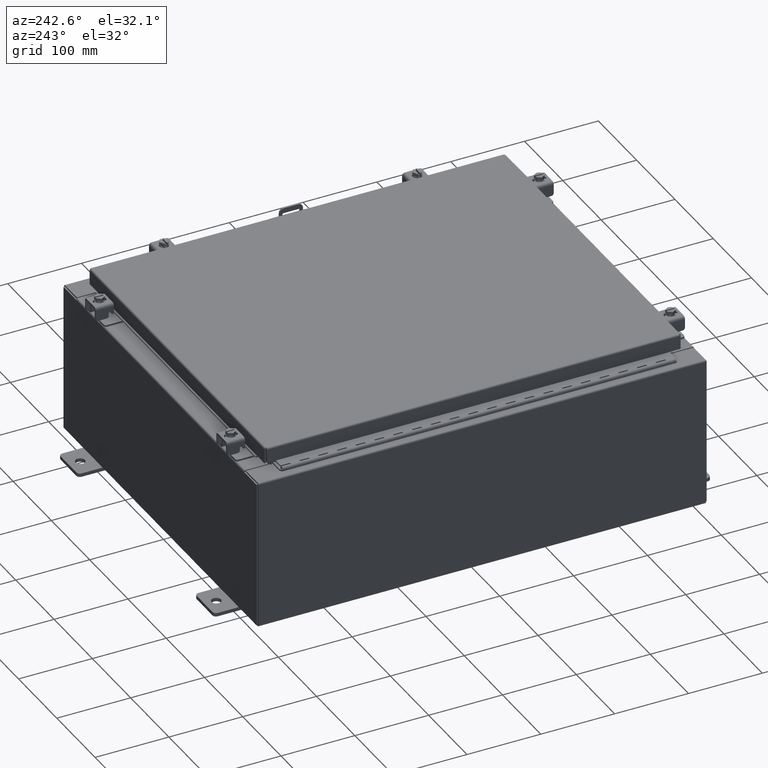
[diagram: clean part render]
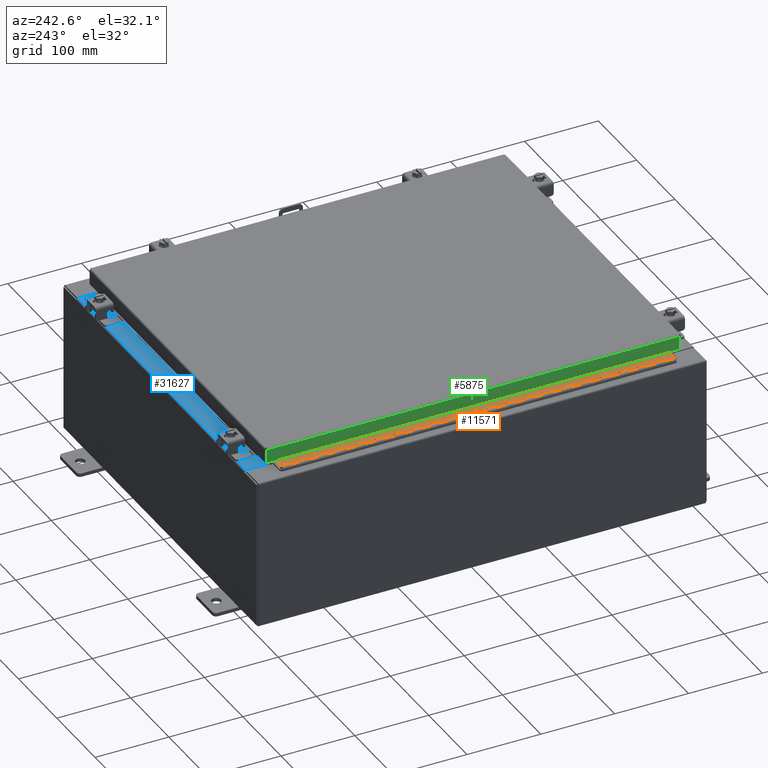
[diagram: same view with three faces highlighted in distinct colors, each labeled with its STEP entity id]
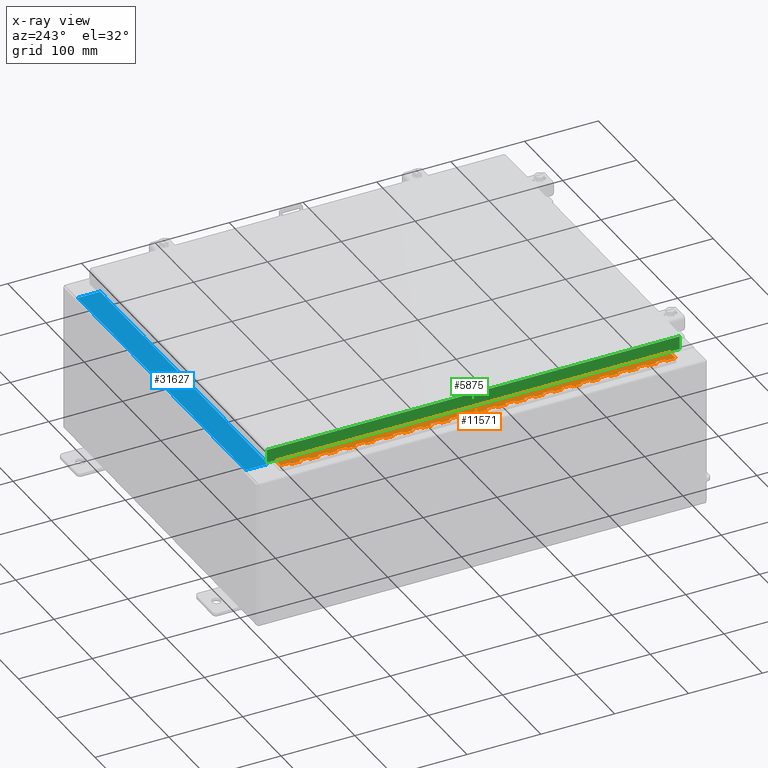
[diagram: x-ray of the same camera — body ghosted, the three highlighted faces saturated]
A machine part, auxiliary view with three faces highlighted in distinct colors.
The next image is the same camera in x-ray (body ghosted, the three faces saturated) — at least one of them is partly hidden behind the body in this view.
Their STEP definitions:

[orange] entity #11571 — the highlighted planar face has unit normal (-0, -0, 1).
#72 = EDGE_CURVE ( 'NONE', #31941, #16495, #19996, .T. ) ;
#95 = VERTEX_POINT ( 'NONE', #32042 ) ;
#104 = CARTESIAN_POINT ( 'NONE',  ( -0.6869999999999978300, 0.6754999999999996600, -21.00000000000000000 ) ) ;
#152 = DIRECTION ( 'NONE',  ( 0.0000000000000000000, -0.0000000000000000000, -1.000000000000000000 ) ) ;
#158 = VERTEX_POINT ( 'NONE', #24672 ) ;
#192 = VECTOR ( 'NONE', #152, 39.37007874015748100 ) ;
#249 = LINE ( 'NONE', #13027, #10410 ) ;
#327 = CARTESIAN_POINT ( 'NONE',  ( -0.6869999999999978300, 0.6754999999999996600, -21.00000000000000000 ) ) ;
#373 = ORIENTED_EDGE ( 'NONE', *, *, #5772, .F. ) ;
#419 = VECTOR ( 'NONE', #10632, 39.37007874015748100 ) ;
#421 = LINE ( 'NONE', #12951, #26584 ) ;
#492 = VERTEX_POINT ( 'NONE', #1277 ) ;
#511 = CARTESIAN_POINT ( 'NONE',  ( -0.6869999999999973900, 0.8004999999999995500, -6.499999999999999100 ) ) ;
#547 = VECTOR ( 'NONE', #10342, 39.37007874015748100 ) ;
#579 = ORIENTED_EDGE ( 'NONE', *, *, #18623, .T. ) ;
#615 = EDGE_CURVE ( 'NONE', #27066, #18751, #25871, .T. ) ;
#629 = ORIENTED_EDGE ( 'NONE', *, *, #25725, .F. ) ;
#727 = DIRECTION ( 'NONE',  ( 3.389037039080723100E-015, 1.000000000000000000, -0.0000000000000000000 ) ) ;
#773 = VECTOR ( 'NONE', #28129, 39.37007874015748100 ) ;
#817 = ORIENTED_EDGE ( 'NONE', *, *, #27896, .F. ) ;
#938 = LINE ( 'NONE', #18654, #29425 ) ;
#944 = CARTESIAN_POINT ( 'NONE',  ( -0.6869999999999982800, 0.5504999999999997700, -7.000000000000000000 ) ) ;
#956 = CARTESIAN_POINT ( 'NONE',  ( -0.6869999999999982800, 0.5504999999999997700, -12.49999999999999800 ) ) ;
#1136 = LINE ( 'NONE', #4618, #29504 ) ;
#1240 = CARTESIAN_POINT ( 'NONE',  ( -0.6869999999999998300, 0.07549999999999991400, -21.00000000000000000 ) ) ;
#1276 = VECTOR ( 'NONE', #9598, 39.37007874015748100 ) ;
#1277 = CARTESIAN_POINT ( 'NONE',  ( -0.6869999999999982800, 0.5504999999999997700, -10.00000000000000000 ) ) ;
#1366 = DIRECTION ( 'NONE',  ( 0.0000000000000000000, -0.0000000000000000000, -1.000000000000000000 ) ) ;
#1374 = DIRECTION ( 'NONE',  ( -3.389037039080723100E-015, -1.000000000000000000, 0.0000000000000000000 ) ) ;
#1401 = EDGE_CURVE ( 'NONE', #95, #5505, #13437, .T. ) ;
#1411 = CARTESIAN_POINT ( 'NONE',  ( -0.6869999999999982800, 0.5504999999999997700, -19.50000000000000000 ) ) ;
#1423 = FACE_OUTER_BOUND ( 'NONE', #13413, .T. ) ;
#1444 = EDGE_CURVE ( 'NONE', #4088, #31842, #24304, .T. ) ;
#1625 = CARTESIAN_POINT ( 'NONE',  ( -0.6869999999999978300, 0.6754999999999996600, -4.000000000000000000 ) ) ;
#1630 = CARTESIAN_POINT ( 'NONE',  ( -0.6869999999999982800, 0.5504999999999997700, -1.000000000000000000 ) ) ;
#1737 = EDGE_CURVE ( 'NONE', #15295, #22101, #8138, .T. ) ;
#1761 = EDGE_CURVE ( 'NONE', #21065, #9714, #6134, .T. ) ;
#1767 = EDGE_CURVE ( 'NONE', #95, #21434, #7452, .T. ) ;
#1772 = DIRECTION ( 'NONE',  ( 3.389037039080723100E-015, 1.000000000000000000, -0.0000000000000000000 ) ) ;
#1784 = EDGE_CURVE ( 'NONE', #12634, #20518, #31451, .T. ) ;
#1806 = CARTESIAN_POINT ( 'NONE',  ( -0.6869999999999978300, 0.6754999999999996600, -5.000000000000000000 ) ) ;
#1838 = EDGE_CURVE ( 'NONE', #17435, #2869, #16113, .T. ) ;
#1878 = CARTESIAN_POINT ( 'NONE',  ( -0.6869999999999973900, 0.8004999999999995500, -20.00000000000000000 ) ) ;
#1889 = DIRECTION ( 'NONE',  ( 0.0000000000000000000, 0.0000000000000000000, 1.000000000000000000 ) ) ;
#1908 = DIRECTION ( 'NONE',  ( -3.389037039080723100E-015, -1.000000000000000000, 0.0000000000000000000 ) ) ;
#1953 = ORIENTED_EDGE ( 'NONE', *, *, #19820, .F. ) ;
#2002 = ORIENTED_EDGE ( 'NONE', *, *, #26963, .T. ) ;
#2180 = CARTESIAN_POINT ( 'NONE',  ( -0.6869999999999978300, 0.6754999999999996600, -4.500000000000000000 ) ) ;
#2186 = LINE ( 'NONE', #23374, #32911 ) ;
#2248 = EDGE_CURVE ( 'NONE', #5620, #9812, #15557, .T. ) ;
#2257 = ORIENTED_EDGE ( 'NONE', *, *, #8044, .F. ) ;
#2272 = ORIENTED_EDGE ( 'NONE', *, *, #15311, .F. ) ;
#2303 = LINE ( 'NONE', #28101, #773 ) ;
#2348 = ORIENTED_EDGE ( 'NONE', *, *, #1761, .F. ) ;
#2375 = CARTESIAN_POINT ( 'NONE',  ( -0.6869999999999973900, 0.8004999999999995500, -19.50000000000000000 ) ) ;
#2517 = CARTESIAN_POINT ( 'NONE',  ( -0.6869999999999978300, 0.6754999999999996600, -16.50000000000000000 ) ) ;
#2530 = CARTESIAN_POINT ( 'NONE',  ( -0.6869999999999998300, 0.07549999999999991400, -21.00000000000000000 ) ) ;
#2532 = VERTEX_POINT ( 'NONE', #19834 ) ;
#2725 = EDGE_CURVE ( 'NONE', #5505, #10957, #26624, .T. ) ;
#2748 = EDGE_CURVE ( 'NONE', #11145, #15222, #10346, .T. ) ;
#2827 = VERTEX_POINT ( 'NONE', #23710 ) ;
#2854 = EDGE_CURVE ( 'NONE', #21801, #21434, #28628, .T. ) ;
#2869 = VERTEX_POINT ( 'NONE', #21868 ) ;
#2871 = VERTEX_POINT ( 'NONE', #24223 ) ;
#2938 = VERTEX_POINT ( 'NONE', #32371 ) ;
#2986 = LINE ( 'NONE', #17877, #13874 ) ;
#3001 = VECTOR ( 'NONE', #7711, 39.37007874015748100 ) ;
#3013 = EDGE_CURVE ( 'NONE', #23350, #18735, #22221, .T. ) ;
#3070 = LINE ( 'NONE', #17144, #14933 ) ;
#3126 = VERTEX_POINT ( 'NONE', #13439 ) ;
#3219 = ORIENTED_EDGE ( 'NONE', *, *, #4974, .F. ) ;
#3452 = DIRECTION ( 'NONE',  ( 0.0000000000000000000, 0.0000000000000000000, 1.000000000000000000 ) ) ;
#3458 = EDGE_CURVE ( 'NONE', #13190, #22101, #15332, .T. ) ;
#3467 = VECTOR ( 'NONE', #6435, 39.37007874015748100 ) ;
#3644 = DIRECTION ( 'NONE',  ( 0.0000000000000000000, 0.0000000000000000000, 1.000000000000000000 ) ) ;
#3649 = ORIENTED_EDGE ( 'NONE', *, *, #6611, .F. ) ;
#3788 = EDGE_CURVE ( 'NONE', #11145, #31712, #19219, .T. ) ;
#3838 = VERTEX_POINT ( 'NONE', #11628 ) ;
#3854 = EDGE_CURVE ( 'NONE', #16452, #28626, #11042, .T. ) ;
#3875 = LINE ( 'NONE', #6236, #30788 ) ;
#3888 = CARTESIAN_POINT ( 'NONE',  ( -0.6869999999999978300, 0.6754999999999996600, -9.500000000000000000 ) ) ;
#3958 = VECTOR ( 'NONE', #26482, 39.37007874015748100 ) ;
#4002 = EDGE_CURVE ( 'NONE', #7594, #21764, #7315, .T. ) ;
#4009 = VERTEX_POINT ( 'NONE', #10034 ) ;
#4063 = EDGE_CURVE ( 'NONE', #4009, #11739, #7864, .T. ) ;
#4074 = DIRECTION ( 'NONE',  ( 0.0000000000000000000, -0.0000000000000000000, -1.000000000000000000 ) ) ;
#4088 = VERTEX_POINT ( 'NONE', #4867 ) ;
#4093 = DIRECTION ( 'NONE',  ( 0.0000000000000000000, 0.0000000000000000000, 1.000000000000000000 ) ) ;
#4144 = EDGE_CURVE ( 'NONE', #3126, #23350, #16301, .T. ) ;
#4153 = ORIENTED_EDGE ( 'NONE', *, *, #3458, .T. ) ;
#4202 = CARTESIAN_POINT ( 'NONE',  ( -0.6869999999999973900, 0.8004999999999995500, -17.99999999999999600 ) ) ;
#4279 = ORIENTED_EDGE ( 'NONE', *, *, #1401, .F. ) ;
#4306 = EDGE_CURVE ( 'NONE', #10010, #14289, #13847, .T. ) ;
#4314 = ORIENTED_EDGE ( 'NONE', *, *, #20349, .F. ) ;
#4329 = CARTESIAN_POINT ( 'NONE',  ( -0.6870000000000022800, -0.6245000000000003900, -21.00000000000000000 ) ) ;
#4335 = CARTESIAN_POINT ( 'NONE',  ( -0.6869999999999978300, 0.6754999999999996600, -19.50000000000000000 ) ) ;
#4399 = VERTEX_POINT ( 'NONE', #31538 ) ;
#4406 = CARTESIAN_POINT ( 'NONE',  ( -0.6869999999999978300, 0.6754999999999996600, -21.00000000000000000 ) ) ;
#4412 = PLANE ( 'NONE',  #15098 ) ;
#4465 = DIRECTION ( 'NONE',  ( 0.0000000000000000000, 0.0000000000000000000, 1.000000000000000000 ) ) ;
#4495 = CARTESIAN_POINT ( 'NONE',  ( -0.6869999999999973900, 0.8004999999999995500, -1.000000000000000000 ) ) ;
#4544 = ORIENTED_EDGE ( 'NONE', *, *, #1737, .F. ) ;
#4612 = DIRECTION ( 'NONE',  ( 3.389037039080723100E-015, 1.000000000000000000, -0.0000000000000000000 ) ) ;
#4618 = CARTESIAN_POINT ( 'NONE',  ( -0.6869999999999978300, 0.6754999999999996600, -21.00000000000000000 ) ) ;
#4619 = LINE ( 'NONE', #28529, #25970 ) ;
#4628 = LINE ( 'NONE', #511, #21189 ) ;
#4704 = CARTESIAN_POINT ( 'NONE',  ( -0.6869999999999982800, 0.5504999999999997700, -8.500000000000000000 ) ) ;
#4815 = CARTESIAN_POINT ( 'NONE',  ( -0.6869999999999978300, 0.6754999999999996600, -7.499999999999999100 ) ) ;
#4867 = CARTESIAN_POINT ( 'NONE',  ( -0.6869999999999982800, 0.5504999999999997700, -18.50000000000000000 ) ) ;
#4905 = CARTESIAN_POINT ( 'NONE',  ( -0.6869999999999982800, 0.5504999999999997700, -4.500000000000000000 ) ) ;
#4974 = EDGE_CURVE ( 'NONE', #6465, #17435, #22773, .T. ) ;
#5078 = ORIENTED_EDGE ( 'NONE', *, *, #3013, .F. ) ;
#5181 = CARTESIAN_POINT ( 'NONE',  ( -0.6869999999999978300, 0.6754999999999996600, -11.99999999999999800 ) ) ;
#5271 = CARTESIAN_POINT ( 'NONE',  ( -0.6869999999999982800, 0.5504999999999997700, -17.00000000000000000 ) ) ;
#5305 = CARTESIAN_POINT ( 'NONE',  ( -0.6869999999999982800, 0.5504999999999997700, -2.500000000000000000 ) ) ;
#5321 = VECTOR ( 'NONE', #15488, 39.37007874015748100 ) ;
#5332 = VECTOR ( 'NONE', #19771, 39.37007874015748100 ) ;
#5350 = CARTESIAN_POINT ( 'NONE',  ( -0.6869999999999982800, 0.5504999999999997700, -6.499999999999999100 ) ) ;
#5355 = ORIENTED_EDGE ( 'NONE', *, *, #8158, .T. ) ;
#5503 = CARTESIAN_POINT ( 'NONE',  ( -0.6869999999999978300, 0.6754999999999996600, -10.50000000000000000 ) ) ;
#5505 = VERTEX_POINT ( 'NONE', #18311 ) ;
#5528 = EDGE_CURVE ( 'NONE', #15356, #4088, #4619, .T. ) ;
#5583 = CARTESIAN_POINT ( 'NONE',  ( -0.6869999999999982800, 0.5504999999999997700, -19.00000000000000000 ) ) ;
#5620 = VERTEX_POINT ( 'NONE', #24882 ) ;
#5640 = ORIENTED_EDGE ( 'NONE', *, *, #24966, .F. ) ;
#5766 = VECTOR ( 'NONE', #1889, 39.37007874015748100 ) ;
#5772 = EDGE_CURVE ( 'NONE', #16511, #9848, #29916, .T. ) ;
#5790 = ORIENTED_EDGE ( 'NONE', *, *, #23602, .F. ) ;
#5820 = VERTEX_POINT ( 'NONE', #23921 ) ;
#6008 = CARTESIAN_POINT ( 'NONE',  ( -0.6869999999999982800, 0.5504999999999997700, -16.00000000000000000 ) ) ;
#6031 = ORIENTED_EDGE ( 'NONE', *, *, #15685, .F. ) ;
#6084 = DIRECTION ( 'NONE',  ( -3.389037039080723100E-015, -1.000000000000000000, 0.0000000000000000000 ) ) ;
#6101 = VECTOR ( 'NONE', #22974, 39.37007874015748100 ) ;
#6134 = LINE ( 'NONE', #7894, #14259 ) ;
#6156 = DIRECTION ( 'NONE',  ( -3.389037039080723100E-015, -1.000000000000000000, 0.0000000000000000000 ) ) ;
#6186 = EDGE_CURVE ( 'NONE', #4399, #31712, #17664, .T. ) ;
#6198 = EDGE_CURVE ( 'NONE', #28626, #9812, #19679, .T. ) ;
#6236 = CARTESIAN_POINT ( 'NONE',  ( -0.6869999999999973900, 0.8004999999999995500, -19.00000000000000000 ) ) ;
#6242 = VECTOR ( 'NONE', #4093, 39.37007874015748100 ) ;
#6286 = VERTEX_POINT ( 'NONE', #4905 ) ;
#6318 = CARTESIAN_POINT ( 'NONE',  ( -0.6869999999999982800, 0.5504999999999997700, -12.99999999999999800 ) ) ;
#6386 = DIRECTION ( 'NONE',  ( 3.369016658928398200E-015, 1.000000000000000000, 0.0000000000000000000 ) ) ;
#6416 = CARTESIAN_POINT ( 'NONE',  ( -0.6869999999999982800, 0.5504999999999997700, -6.000000000000000900 ) ) ;
#6429 = DIRECTION ( 'NONE',  ( 1.000000000000000000, -3.369016658928398200E-015, 0.0000000000000000000 ) ) ;
#6435 = DIRECTION ( 'NONE',  ( 0.0000000000000000000, -0.0000000000000000000, -1.000000000000000000 ) ) ;
#6460 = ORIENTED_EDGE ( 'NONE', *, *, #14469, .F. ) ;
#6465 = VERTEX_POINT ( 'NONE', #30205 ) ;
#6505 = CARTESIAN_POINT ( 'NONE',  ( -0.6869999999999982800, 0.5504999999999997700, -7.499999999999999100 ) ) ;
#6562 = DIRECTION ( 'NONE',  ( -3.389037039080723100E-015, -1.000000000000000000, 0.0000000000000000000 ) ) ;
#6575 = EDGE_CURVE ( 'NONE', #10075, #4399, #7913, .T. ) ;
#6608 = DIRECTION ( 'NONE',  ( 3.369016658928398200E-015, 1.000000000000000000, 0.0000000000000000000 ) ) ;
#6611 = EDGE_CURVE ( 'NONE', #11739, #12345, #10100, .T. ) ;
#6625 = VECTOR ( 'NONE', #28585, 39.37007874015748100 ) ;
#6707 = DIRECTION ( 'NONE',  ( 3.389037039080723100E-015, 1.000000000000000000, -0.0000000000000000000 ) ) ;
#6829 = ORIENTED_EDGE ( 'NONE', *, *, #30806, .F. ) ;
#6860 = ORIENTED_EDGE ( 'NONE', *, *, #19648, .F. ) ;
#6869 = CARTESIAN_POINT ( 'NONE',  ( -0.6869999999999982800, 0.5504999999999997700, -21.00000000000000000 ) ) ;
#6896 = ORIENTED_EDGE ( 'NONE', *, *, #10214, .T. ) ;
#6912 = LINE ( 'NONE', #11394, #7717 ) ;
#7109 = EDGE_CURVE ( 'NONE', #24433, #15327, #21209, .T. ) ;
#7108 = DIRECTION ( 'NONE',  ( 0.0000000000000000000, 0.0000000000000000000, 1.000000000000000000 ) ) ;
#7150 = CARTESIAN_POINT ( 'NONE',  ( -0.6869999999999978300, 0.6754999999999996600, -21.00000000000000000 ) ) ;
#7227 = DIRECTION ( 'NONE',  ( -3.389037039080723100E-015, -1.000000000000000000, 0.0000000000000000000 ) ) ;
#7249 = DIRECTION ( 'NONE',  ( -3.389037039080723100E-015, -1.000000000000000000, 0.0000000000000000000 ) ) ;
#7315 = LINE ( 'NONE', #10966, #13002 ) ;
#7342 = ORIENTED_EDGE ( 'NONE', *, *, #10755, .F. ) ;
#7446 = CARTESIAN_POINT ( 'NONE',  ( -0.6869999999999973900, 0.8004999999999995500, -12.99999999999999800 ) ) ;
#7452 = LINE ( 'NONE', #27465, #5766 ) ;
#7580 = VERTEX_POINT ( 'NONE', #10856 ) ;
#7594 = VERTEX_POINT ( 'NONE', #10363 ) ;
#7711 = DIRECTION ( 'NONE',  ( 3.389037039080723100E-015, 1.000000000000000000, -0.0000000000000000000 ) ) ;
#7713 = EDGE_CURVE ( 'NONE', #14715, #18751, #28383, .T. ) ;
#7717 = VECTOR ( 'NONE', #26548, 39.37007874015748100 ) ;
#7784 = DIRECTION ( 'NONE',  ( -3.389037039080723100E-015, -1.000000000000000000, 0.0000000000000000000 ) ) ;
#7805 = EDGE_CURVE ( 'NONE', #10010, #11495, #31112, .T. ) ;
#7838 = CARTESIAN_POINT ( 'NONE',  ( -0.6869999999999973900, 0.8004999999999995500, -4.500000000000000000 ) ) ;
#7864 = LINE ( 'NONE', #10247, #6625 ) ;
#7872 = VECTOR ( 'NONE', #16264, 39.37007874015748100 ) ;
#7894 = CARTESIAN_POINT ( 'NONE',  ( -0.6869999999999973900, 0.8004999999999995500, -3.500000000000000000 ) ) ;
#7913 = LINE ( 'NONE', #9022, #24752 ) ;
#7950 = DIRECTION ( 'NONE',  ( 0.0000000000000000000, -0.0000000000000000000, -1.000000000000000000 ) ) ;
#7978 = CARTESIAN_POINT ( 'NONE',  ( -0.6869999999999978300, 0.6754999999999996600, -2.000000000000000000 ) ) ;
#8044 = EDGE_CURVE ( 'NONE', #10957, #16495, #421, .T. ) ;
#8072 = CARTESIAN_POINT ( 'NONE',  ( -0.6869999999999982800, 0.5504999999999997700, -18.50000000000000000 ) ) ;
#8091 = LINE ( 'NONE', #23854, #1276 ) ;
#8095 = CARTESIAN_POINT ( 'NONE',  ( -0.6869999999999978300, 0.6754999999999996600, -14.49999999999999800 ) ) ;
#8124 = CARTESIAN_POINT ( 'NONE',  ( -0.6869999999999978300, 0.6754999999999996600, -20.50000000000000400 ) ) ;
#8128 = VERTEX_POINT ( 'NONE', #32294 ) ;
#8138 = LINE ( 'NONE', #10519, #29847 ) ;
#8150 = LINE ( 'NONE', #327, #7872 ) ;
#8158 = EDGE_CURVE ( 'NONE', #5820, #32266, #32448, .T. ) ;
#8221 = CARTESIAN_POINT ( 'NONE',  ( -0.6869999999999973900, 0.8004999999999995500, -8.500000000000000000 ) ) ;
#8256 = ORIENTED_EDGE ( 'NONE', *, *, #24340, .F. ) ;
#8462 = ORIENTED_EDGE ( 'NONE', *, *, #29030, .T. ) ;
#8475 = VECTOR ( 'NONE', #15706, 39.37007874015748100 ) ;
#8519 = VECTOR ( 'NONE', #10168, 39.37007874015748100 ) ;
#8578 = LINE ( 'NONE', #22612, #6101 ) ;
#8589 = VERTEX_POINT ( 'NONE', #13746 ) ;
#8613 = EDGE_CURVE ( 'NONE', #8589, #25912, #8150, .T. ) ;
#8753 = ORIENTED_EDGE ( 'NONE', *, *, #10983, .F. ) ;
#8857 = VECTOR ( 'NONE', #29555, 39.37007874015748100 ) ;
#8990 = DIRECTION ( 'NONE',  ( 3.389037039080723100E-015, 1.000000000000000000, -0.0000000000000000000 ) ) ;
#9022 = CARTESIAN_POINT ( 'NONE',  ( -0.6869999999999982800, 0.5504999999999997700, -13.50000000000000000 ) ) ;
#9045 = DIRECTION ( 'NONE',  ( 0.0000000000000000000, -0.0000000000000000000, -1.000000000000000000 ) ) ;
#9065 = CARTESIAN_POINT ( 'NONE',  ( -0.6869999999999982800, 0.5504999999999997700, -15.50000000000000000 ) ) ;
#9183 = CARTESIAN_POINT ( 'NONE',  ( -0.6869999999999973900, 0.8004999999999995500, -17.00000000000000000 ) ) ;
#9352 = CARTESIAN_POINT ( 'NONE',  ( -0.6869999999999982800, 0.5504999999999997700, -9.500000000000000000 ) ) ;
#9428 = CARTESIAN_POINT ( 'NONE',  ( -0.6869999999999973900, 0.8004999999999995500, -4.000000000000000000 ) ) ;
#9456 = LINE ( 'NONE', #12260, #14140 ) ;
#9473 = CARTESIAN_POINT ( 'NONE',  ( -0.6869999999999998300, 0.07549999999999991400, 0.0000000000000000000 ) ) ;
#9501 = CARTESIAN_POINT ( 'NONE',  ( -0.6869999999999973900, 0.8004999999999995500, -5.000000000000000000 ) ) ;
#9519 = LINE ( 'NONE', #7838, #25328 ) ;
#9598 = DIRECTION ( 'NONE',  ( -3.389037039080723100E-015, -1.000000000000000000, 0.0000000000000000000 ) ) ;
#9636 = CARTESIAN_POINT ( 'NONE',  ( -0.6869999999999978300, 0.6754999999999996600, -21.00000000000000000 ) ) ;
#9637 = CARTESIAN_POINT ( 'NONE',  ( -0.6869999999999973900, 0.8004999999999995500, -16.00000000000000000 ) ) ;
#9647 = EDGE_CURVE ( 'NONE', #11495, #27550, #32812, .T. ) ;
#9672 = VERTEX_POINT ( 'NONE', #28948 ) ;
#9698 = VECTOR ( 'NONE', #8990, 39.37007874015748100 ) ;
#9714 = VERTEX_POINT ( 'NONE', #19131 ) ;
#9740 = CARTESIAN_POINT ( 'NONE',  ( -0.6869999999999982800, 0.5504999999999997700, -16.50000000000000000 ) ) ;
#9767 = VERTEX_POINT ( 'NONE', #31661 ) ;
#9786 = CARTESIAN_POINT ( 'NONE',  ( -0.6869999999999973900, 0.8004999999999995500, -11.00000000000000000 ) ) ;
#9812 = VERTEX_POINT ( 'NONE', #27140 ) ;
#9821 = LINE ( 'NONE', #27112, #31307 ) ;
#9848 = VERTEX_POINT ( 'NONE', #13054 ) ;
#9902 = CARTESIAN_POINT ( 'NONE',  ( -0.6869999999999973900, 0.8004999999999995500, -0.5000000000000000000 ) ) ;
#9923 = ORIENTED_EDGE ( 'NONE', *, *, #22497, .F. ) ;
#9934 = VECTOR ( 'NONE', #19882, 39.37007874015748100 ) ;
#9951 = CARTESIAN_POINT ( 'NONE',  ( -0.6869999999999978300, 0.6754999999999996600, -21.00000000000000000 ) ) ;
#10003 = CARTESIAN_POINT ( 'NONE',  ( -0.6869999999999973900, 0.8004999999999995500, -14.00000000000000000 ) ) ;
#10010 = VERTEX_POINT ( 'NONE', #4335 ) ;
#10027 = CARTESIAN_POINT ( 'NONE',  ( -0.6869999999999978300, 0.6754999999999996600, -10.00000000000000000 ) ) ;
#10034 = CARTESIAN_POINT ( 'NONE',  ( -0.6869999999999982800, 0.5504999999999997700, -0.5000000000000000000 ) ) ;
#10075 = VERTEX_POINT ( 'NONE', #31716 ) ;
#10082 = LINE ( 'NONE', #16703, #28019 ) ;
#10100 = LINE ( 'NONE', #4495, #10795 ) ;
#10162 = DIRECTION ( 'NONE',  ( 0.0000000000000000000, 0.0000000000000000000, 1.000000000000000000 ) ) ;
#10168 = DIRECTION ( 'NONE',  ( 0.0000000000000000000, -0.0000000000000000000, -1.000000000000000000 ) ) ;
#10170 = DIRECTION ( 'NONE',  ( 3.389037039080723100E-015, 1.000000000000000000, -0.0000000000000000000 ) ) ;
#10214 = EDGE_CURVE ( 'NONE', #20472, #9848, #6912, .T. ) ;
#10215 = DIRECTION ( 'NONE',  ( 3.389037039080723100E-015, 1.000000000000000000, -0.0000000000000000000 ) ) ;
#10247 = CARTESIAN_POINT ( 'NONE',  ( -0.6869999999999982800, 0.5504999999999997700, -0.5000000000000000000 ) ) ;
#10267 = VECTOR ( 'NONE', #10412, 39.37007874015748100 ) ;
#10342 = DIRECTION ( 'NONE',  ( 3.389037039080723100E-015, 1.000000000000000000, -0.0000000000000000000 ) ) ;
#10346 = LINE ( 'NONE', #11704, #27772 ) ;
#10363 = CARTESIAN_POINT ( 'NONE',  ( -0.6869999999999982800, 0.5504999999999997700, -1.499999999999999800 ) ) ;
#10410 = VECTOR ( 'NONE', #17977, 39.37007874015748100 ) ;
#10412 = DIRECTION ( 'NONE',  ( 0.0000000000000000000, 0.0000000000000000000, 1.000000000000000000 ) ) ;
#10479 = ORIENTED_EDGE ( 'NONE', *, *, #10690, .F. ) ;
#10519 = CARTESIAN_POINT ( 'NONE',  ( -0.6869999999999982800, 0.5504999999999997700, -20.50000000000000400 ) ) ;
#10578 = CARTESIAN_POINT ( 'NONE',  ( -0.6869999999999978300, 0.6754999999999996600, -7.000000000000000000 ) ) ;
#10610 = CARTESIAN_POINT ( 'NONE',  ( -0.6869999999999982800, 0.5504999999999997700, -2.000000000000000000 ) ) ;
#10632 = DIRECTION ( 'NONE',  ( 3.389037039080723100E-015, 1.000000000000000000, -0.0000000000000000000 ) ) ;
#10690 = EDGE_CURVE ( 'NONE', #23452, #12212, #9821, .T. ) ;
#10755 = EDGE_CURVE ( 'NONE', #2938, #27066, #20234, .T. ) ;
#10772 = ORIENTED_EDGE ( 'NONE', *, *, #11731, .F. ) ;
#10795 = VECTOR ( 'NONE', #1772, 39.37007874015748100 ) ;
#10856 = CARTESIAN_POINT ( 'NONE',  ( -0.6869999999999978300, 0.6754999999999996600, -20.00000000000000000 ) ) ;
#10880 = VECTOR ( 'NONE', #10162, 39.37007874015748100 ) ;
#10957 = VERTEX_POINT ( 'NONE', #17640 ) ;
#10966 = CARTESIAN_POINT ( 'NONE',  ( -0.6869999999999982800, 0.5504999999999997700, -1.499999999999999800 ) ) ;
#10983 = EDGE_CURVE ( 'NONE', #31941, #3126, #15150, .T. ) ;
#10987 = VERTEX_POINT ( 'NONE', #15605 ) ;
#11030 = CARTESIAN_POINT ( 'NONE',  ( -0.6869999999999973900, 0.8004999999999995500, -9.500000000000000000 ) ) ;
#11042 = LINE ( 'NONE', #16277, #16586 ) ;
#11145 = VERTEX_POINT ( 'NONE', #8095 ) ;
#11202 = CARTESIAN_POINT ( 'NONE',  ( -0.6869999999999973900, 0.8004999999999995500, -10.00000000000000000 ) ) ;
#11273 = ORIENTED_EDGE ( 'NONE', *, *, #13034, .F. ) ;
#11302 = CARTESIAN_POINT ( 'NONE',  ( -0.6869999999999978300, 0.6754999999999996600, -14.99999999999999800 ) ) ;
#11363 = CARTESIAN_POINT ( 'NONE',  ( -0.6869999999999973900, 0.8004999999999995500, -8.000000000000000000 ) ) ;
#11394 = CARTESIAN_POINT ( 'NONE',  ( -0.6869999999999978300, 0.6754999999999996600, -21.00000000000000000 ) ) ;
#11495 = VERTEX_POINT ( 'NONE', #1411 ) ;
#11516 = EDGE_CURVE ( 'NONE', #492, #22953, #25759, .T. ) ;
#11571 = ADVANCED_FACE ( 'NONE', ( #1423 ), #4412, .T. ) ;
#11582 = LINE ( 'NONE', #104, #31274 ) ;
#11604 = VECTOR ( 'NONE', #29355, 39.37007874015748100 ) ;
#11628 = CARTESIAN_POINT ( 'NONE',  ( -0.6869999999999982800, 0.5504999999999997700, -17.99999999999999600 ) ) ;
#11666 = EDGE_CURVE ( 'NONE', #9714, #28045, #2986, .T. ) ;
#11704 = CARTESIAN_POINT ( 'NONE',  ( -0.6869999999999973900, 0.8004999999999995500, -14.49999999999999800 ) ) ;
#11731 = EDGE_CURVE ( 'NONE', #15884, #6286, #9519, .T. ) ;
#11739 = VERTEX_POINT ( 'NONE', #1630 ) ;
#11868 = VECTOR ( 'NONE', #17541, 39.37007874015748100 ) ;
#12181 = CARTESIAN_POINT ( 'NONE',  ( -0.6869999999999982800, 0.5504999999999997700, -10.50000000000000000 ) ) ;
#12212 = VERTEX_POINT ( 'NONE', #31869 ) ;
#12260 = CARTESIAN_POINT ( 'NONE',  ( -0.6869999999999973900, 0.8004999999999995500, -14.99999999999999800 ) ) ;
#12345 = VERTEX_POINT ( 'NONE', #25706 ) ;
#12376 = ORIENTED_EDGE ( 'NONE', *, *, #1444, .F. ) ;
#12392 = LINE ( 'NONE', #11363, #419 ) ;
#12428 = ORIENTED_EDGE ( 'NONE', *, *, #72, .T. ) ;
#12460 = VECTOR ( 'NONE', #18793, 39.37007874015748100 ) ;
#12634 = VERTEX_POINT ( 'NONE', #9473 ) ;
#12768 = CARTESIAN_POINT ( 'NONE',  ( -0.6869999999999978300, 0.6754999999999996600, -21.00000000000000000 ) ) ;
#12769 = EDGE_CURVE ( 'NONE', #6286, #23141, #30955, .T. ) ;
#12818 = DIRECTION ( 'NONE',  ( 3.389037039080723100E-015, 1.000000000000000000, -0.0000000000000000000 ) ) ;
#12900 = ORIENTED_EDGE ( 'NONE', *, *, #15932, .F. ) ;
#12951 = CARTESIAN_POINT ( 'NONE',  ( -0.6869999999999973900, 0.8004999999999995500, -11.99999999999999800 ) ) ;
#13002 = VECTOR ( 'NONE', #7950, 39.37007874015748100 ) ;
#13027 = CARTESIAN_POINT ( 'NONE',  ( -0.6869999999999973900, 0.8004999999999995500, -20.50000000000000400 ) ) ;
#13034 = EDGE_CURVE ( 'NONE', #12212, #2532, #14005, .T. ) ;
#13054 = CARTESIAN_POINT ( 'NONE',  ( -0.6869999999999978300, 0.6754999999999996600, -16.00000000000000000 ) ) ;
#13190 = VERTEX_POINT ( 'NONE', #2530 ) ;
#13323 = DIRECTION ( 'NONE',  ( 0.0000000000000000000, 0.0000000000000000000, 1.000000000000000000 ) ) ;
#13381 = VECTOR ( 'NONE', #14426, 39.37007874015748100 ) ;
#13413 = EDGE_LOOP ( 'NONE', ( #6460, #4153, #4544, #5640, #31443, #13703, #32835, #25892, #18836, #24061, #12376, #20655, #31026, #6829, #6860, #22593, #20066, #16839, #14911, #8256, #6896, #373, #629, #28996, #19184, #14905, #27152, #28377, #31854, #30707, #14062, #24210, #26076, #5078, #15055, #8753, #12428, #2257, #26322, #4279, #24435, #22642, #20224, #21613, #29845, #17771, #18602, #16939, #579, #19596, #20954, #9923, #5355, #20934, #11273, #10479, #32595, #31392, #2272, #12900, #31351, #14765, #7342, #18090, #27762, #1953, #20785, #10772, #8462, #5790, #16657, #2348, #2002, #6031, #31615, #3219, #18601, #817, #24623, #4314, #28246, #3649, #20823, #14908, #32394, #17312 ) ) ;
#13437 = LINE ( 'NONE', #26368, #14054 ) ;
#13439 = CARTESIAN_POINT ( 'NONE',  ( -0.6869999999999982800, 0.5504999999999997700, -12.49999999999999800 ) ) ;
#13440 = EDGE_CURVE ( 'NONE', #2827, #12345, #2186, .T. ) ;
#13695 = LINE ( 'NONE', #15953, #23867 ) ;
#13703 = ORIENTED_EDGE ( 'NONE', *, *, #25304, .F. ) ;
#13746 = CARTESIAN_POINT ( 'NONE',  ( -0.6869999999999978300, 0.6754999999999996600, -5.500000000000000000 ) ) ;
#13767 = CARTESIAN_POINT ( 'NONE',  ( -0.6869999999999973900, 0.8004999999999995500, -17.50000000000000000 ) ) ;
#13847 = LINE ( 'NONE', #16346, #24932 ) ;
#13867 = DIRECTION ( 'NONE',  ( 3.389037039080723100E-015, 1.000000000000000000, -0.0000000000000000000 ) ) ;
#13874 = VECTOR ( 'NONE', #17299, 39.37007874015748100 ) ;
#14005 = LINE ( 'NONE', #6505, #3467 ) ;
#14054 = VECTOR ( 'NONE', #7249, 39.37007874015748100 ) ;
#14062 = ORIENTED_EDGE ( 'NONE', *, *, #6575, .F. ) ;
#14071 = EDGE_CURVE ( 'NONE', #2532, #32266, #12392, .T. ) ;
#14090 = VECTOR ( 'NONE', #10215, 39.37007874015748100 ) ;
#14140 = VECTOR ( 'NONE', #6707, 39.37007874015748100 ) ;
#14180 = VECTOR ( 'NONE', #4612, 39.37007874015748100 ) ;
#14259 = VECTOR ( 'NONE', #7784, 39.37007874015748100 ) ;
#14289 = VERTEX_POINT ( 'NONE', #18784 ) ;
#14328 = VECTOR ( 'NONE', #15699, 39.37007874015748100 ) ;
#14426 = DIRECTION ( 'NONE',  ( 3.389037039080723100E-015, 1.000000000000000000, -0.0000000000000000000 ) ) ;
#14469 = EDGE_CURVE ( 'NONE', #13190, #12634, #25859, .T. ) ;
#14488 = DIRECTION ( 'NONE',  ( -3.389037039080723100E-015, -1.000000000000000000, 0.0000000000000000000 ) ) ;
#14503 = CARTESIAN_POINT ( 'NONE',  ( -0.6869999999999982800, 0.5504999999999997700, -11.00000000000000000 ) ) ;
#14533 = VERTEX_POINT ( 'NONE', #32240 ) ;
#14678 = LINE ( 'NONE', #4704, #20303 ) ;
#14715 = VERTEX_POINT ( 'NONE', #26732 ) ;
#14765 = ORIENTED_EDGE ( 'NONE', *, *, #615, .F. ) ;
#14896 = VECTOR ( 'NONE', #7108, 39.37007874015748100 ) ;
#14905 = ORIENTED_EDGE ( 'NONE', *, *, #32247, .F. ) ;
#14908 = ORIENTED_EDGE ( 'NONE', *, *, #30575, .F. ) ;
#14911 = ORIENTED_EDGE ( 'NONE', *, *, #3854, .F. ) ;
#14933 = VECTOR ( 'NONE', #1366, 39.37007874015748100 ) ;
#14957 = CARTESIAN_POINT ( 'NONE',  ( -0.6869999999999973900, 0.8004999999999995500, -15.50000000000000000 ) ) ;
#14965 = CARTESIAN_POINT ( 'NONE',  ( -0.6869999999999982800, 0.5504999999999997700, -20.00000000000000000 ) ) ;
#15046 = CARTESIAN_POINT ( 'NONE',  ( -0.6869999999999982800, 0.5504999999999997700, -17.50000000000000000 ) ) ;
#15055 = ORIENTED_EDGE ( 'NONE', *, *, #4144, .F. ) ;
#15057 = EDGE_CURVE ( 'NONE', #20820, #18735, #27026, .T. ) ;
#15098 = AXIS2_PLACEMENT_3D ( 'NONE', #4329, #6429, #6386 ) ;
#15150 = LINE ( 'NONE', #16227, #20263 ) ;
#15222 = VERTEX_POINT ( 'NONE', #31128 ) ;
#15295 = VERTEX_POINT ( 'NONE', #28498 ) ;
#15306 = DIRECTION ( 'NONE',  ( 3.389037039080723100E-015, 1.000000000000000000, -0.0000000000000000000 ) ) ;
#15311 = EDGE_CURVE ( 'NONE', #19720, #21628, #2303, .T. ) ;
#15327 = VERTEX_POINT ( 'NONE', #27201 ) ;
#15332 = LINE ( 'NONE', #18026, #3958 ) ;
#15356 = VERTEX_POINT ( 'NONE', #25720 ) ;
#15437 = VECTOR ( 'NONE', #24015, 39.37007874015748100 ) ;
#15488 = DIRECTION ( 'NONE',  ( 3.389037039080723100E-015, 1.000000000000000000, -0.0000000000000000000 ) ) ;
#15557 = LINE ( 'NONE', #7150, #6242 ) ;
#15605 = CARTESIAN_POINT ( 'NONE',  ( -0.6869999999999978300, 0.6754999999999996600, -17.99999999999999600 ) ) ;
#15657 = CARTESIAN_POINT ( 'NONE',  ( -0.6869999999999982800, 0.5504999999999997700, -4.500000000000000000 ) ) ;
#15685 = EDGE_CURVE ( 'NONE', #2869, #28916, #13695, .T. ) ;
#15699 = DIRECTION ( 'NONE',  ( 0.0000000000000000000, -0.0000000000000000000, -1.000000000000000000 ) ) ;
#15706 = DIRECTION ( 'NONE',  ( 3.389037039080723100E-015, 1.000000000000000000, -0.0000000000000000000 ) ) ;
#15884 = VERTEX_POINT ( 'NONE', #2180 ) ;
#15932 = EDGE_CURVE ( 'NONE', #14715, #19720, #4628, .T. ) ;
#15953 = CARTESIAN_POINT ( 'NONE',  ( -0.6869999999999973900, 0.8004999999999995500, -2.999999999999999600 ) ) ;
#15973 = CARTESIAN_POINT ( 'NONE',  ( -0.6869999999999978300, 0.6754999999999996600, -3.500000000000000000 ) ) ;
#15981 = CARTESIAN_POINT ( 'NONE',  ( -0.6869999999999978300, 0.6754999999999996600, -21.00000000000000000 ) ) ;
#16113 = LINE ( 'NONE', #23752, #19708 ) ;
#16213 = DIRECTION ( 'NONE',  ( 3.389037039080723100E-015, 1.000000000000000000, -0.0000000000000000000 ) ) ;
#16226 = DIRECTION ( 'NONE',  ( 0.0000000000000000000, 0.0000000000000000000, 1.000000000000000000 ) ) ;
#16227 = CARTESIAN_POINT ( 'NONE',  ( -0.6869999999999973900, 0.8004999999999995500, -12.49999999999999800 ) ) ;
#16264 = DIRECTION ( 'NONE',  ( 0.0000000000000000000, 0.0000000000000000000, 1.000000000000000000 ) ) ;
#16277 = CARTESIAN_POINT ( 'NONE',  ( -0.6869999999999982800, 0.5504999999999997700, -16.50000000000000000 ) ) ;
#16301 = LINE ( 'NONE', #956, #22206 ) ;
#16321 = CARTESIAN_POINT ( 'NONE',  ( -0.6869999999999973900, 0.8004999999999995500, -9.000000000000000000 ) ) ;
#16346 = CARTESIAN_POINT ( 'NONE',  ( -0.6869999999999978300, 0.6754999999999996600, -21.00000000000000000 ) ) ;
#16452 = VERTEX_POINT ( 'NONE', #9740 ) ;
#16453 = CARTESIAN_POINT ( 'NONE',  ( -0.6869999999999982800, 0.5504999999999997700, -8.500000000000000000 ) ) ;
#16495 = VERTEX_POINT ( 'NONE', #5181 ) ;
#16511 = VERTEX_POINT ( 'NONE', #6008 ) ;
#16586 = VECTOR ( 'NONE', #20153, 39.37007874015748100 ) ;
#16657 = ORIENTED_EDGE ( 'NONE', *, *, #11666, .F. ) ;
#16661 = DIRECTION ( 'NONE',  ( -3.389037039080723100E-015, -1.000000000000000000, 0.0000000000000000000 ) ) ;
#16703 = CARTESIAN_POINT ( 'NONE',  ( -0.6869999999999978300, 0.6754999999999996600, -21.00000000000000000 ) ) ;
#16778 = CARTESIAN_POINT ( 'NONE',  ( -0.6869999999999978300, 0.6754999999999996600, -12.99999999999999800 ) ) ;
#16839 = ORIENTED_EDGE ( 'NONE', *, *, #6198, .F. ) ;
#16844 = DIRECTION ( 'NONE',  ( -3.389037039080723100E-015, -1.000000000000000000, 0.0000000000000000000 ) ) ;
#16939 = ORIENTED_EDGE ( 'NONE', *, *, #22758, .F. ) ;
#16979 = LINE ( 'NONE', #9902, #21412 ) ;
#17072 = VECTOR ( 'NONE', #26766, 39.37007874015748100 ) ;
#17144 = CARTESIAN_POINT ( 'NONE',  ( -0.6869999999999982800, 0.5504999999999997700, -14.49999999999999800 ) ) ;
#17262 = VECTOR ( 'NONE', #16213, 39.37007874015748100 ) ;
#17265 = EDGE_CURVE ( 'NONE', #6465, #26583, #8578, .T. ) ;
#17299 = DIRECTION ( 'NONE',  ( 0.0000000000000000000, -0.0000000000000000000, -1.000000000000000000 ) ) ;
#17312 = ORIENTED_EDGE ( 'NONE', *, *, #1784, .F. ) ;
#17432 = LINE ( 'NONE', #15981, #32252 ) ;
#17435 = VERTEX_POINT ( 'NONE', #5305 ) ;
#17541 = DIRECTION ( 'NONE',  ( 0.0000000000000000000, -0.0000000000000000000, -1.000000000000000000 ) ) ;
#17640 = CARTESIAN_POINT ( 'NONE',  ( -0.6869999999999982800, 0.5504999999999997700, -11.99999999999999800 ) ) ;
#17664 = LINE ( 'NONE', #10003, #14090 ) ;
#17681 = LINE ( 'NONE', #9065, #17072 ) ;
#17771 = ORIENTED_EDGE ( 'NONE', *, *, #11516, .F. ) ;
#17834 = EDGE_CURVE ( 'NONE', #158, #2871, #19357, .T. ) ;
#17866 = EDGE_CURVE ( 'NONE', #20820, #10075, #8091, .T. ) ;
#17875 = VECTOR ( 'NONE', #1908, 39.37007874015748100 ) ;
#17877 = CARTESIAN_POINT ( 'NONE',  ( -0.6869999999999982800, 0.5504999999999997700, -3.500000000000000000 ) ) ;
#17977 = DIRECTION ( 'NONE',  ( -3.389037039080723100E-015, -1.000000000000000000, 0.0000000000000000000 ) ) ;
#18026 = CARTESIAN_POINT ( 'NONE',  ( -0.6870000000000022800, -0.6245000000000003900, -21.00000000000000000 ) ) ;
#18090 = ORIENTED_EDGE ( 'NONE', *, *, #32582, .F. ) ;
#18140 = VECTOR ( 'NONE', #6562, 39.37007874015748100 ) ;
#18311 = CARTESIAN_POINT ( 'NONE',  ( -0.6869999999999982800, 0.5504999999999997700, -11.50000000000000000 ) ) ;
#18592 = CARTESIAN_POINT ( 'NONE',  ( -0.6869999999999978300, 0.6754999999999996600, -21.00000000000000000 ) ) ;
#18601 = ORIENTED_EDGE ( 'NONE', *, *, #17265, .T. ) ;
#18602 = ORIENTED_EDGE ( 'NONE', *, *, #22659, .F. ) ;
#18623 = EDGE_CURVE ( 'NONE', #30781, #2871, #11582, .T. ) ;
#18654 = CARTESIAN_POINT ( 'NONE',  ( -0.6869999999999973900, 0.8004999999999995500, -16.50000000000000000 ) ) ;
#18735 = VERTEX_POINT ( 'NONE', #16778 ) ;
#18751 = VERTEX_POINT ( 'NONE', #20241 ) ;
#18784 = CARTESIAN_POINT ( 'NONE',  ( -0.6869999999999978300, 0.6754999999999996600, -19.00000000000000000 ) ) ;
#18793 = DIRECTION ( 'NONE',  ( 0.0000000000000000000, -0.0000000000000000000, -1.000000000000000000 ) ) ;
#18836 = ORIENTED_EDGE ( 'NONE', *, *, #4306, .T. ) ;
#19058 = VERTEX_POINT ( 'NONE', #11302 ) ;
#19070 = DIRECTION ( 'NONE',  ( 0.0000000000000000000, 0.0000000000000000000, 1.000000000000000000 ) ) ;
#19103 = VECTOR ( 'NONE', #4074, 39.37007874015748100 ) ;
#19131 = CARTESIAN_POINT ( 'NONE',  ( -0.6869999999999982800, 0.5504999999999997700, -3.500000000000000000 ) ) ;
#19184 = ORIENTED_EDGE ( 'NONE', *, *, #26096, .T. ) ;
#19219 = LINE ( 'NONE', #12768, #21596 ) ;
#19260 = EDGE_CURVE ( 'NONE', #19457, #7580, #31021, .T. ) ;
#19351 = EDGE_CURVE ( 'NONE', #15222, #9672, #3070, .T. ) ;
#19357 = LINE ( 'NONE', #16321, #5321 ) ;
#19457 = VERTEX_POINT ( 'NONE', #8124 ) ;
#19596 = ORIENTED_EDGE ( 'NONE', *, *, #17834, .F. ) ;
#19644 = CARTESIAN_POINT ( 'NONE',  ( -0.6869999999999973900, 0.8004999999999995500, -5.500000000000000000 ) ) ;
#19648 = EDGE_CURVE ( 'NONE', #28966, #3838, #24052, .T. ) ;
#19679 = LINE ( 'NONE', #9183, #9698 ) ;
#19708 = VECTOR ( 'NONE', #9045, 39.37007874015748100 ) ;
#19720 = VERTEX_POINT ( 'NONE', #5350 ) ;
#19771 = DIRECTION ( 'NONE',  ( -3.389037039080723100E-015, -1.000000000000000000, 0.0000000000000000000 ) ) ;
#19820 = EDGE_CURVE ( 'NONE', #23141, #25912, #21435, .T. ) ;
#19834 = CARTESIAN_POINT ( 'NONE',  ( -0.6869999999999982800, 0.5504999999999997700, -8.000000000000000000 ) ) ;
#19882 = DIRECTION ( 'NONE',  ( 3.389037039080723100E-015, 1.000000000000000000, -0.0000000000000000000 ) ) ;
#19996 = LINE ( 'NONE', #31898, #8857 ) ;
#20036 = CARTESIAN_POINT ( 'NONE',  ( -0.6869999999999978300, 0.6754999999999996600, -11.00000000000000000 ) ) ;
#20066 = ORIENTED_EDGE ( 'NONE', *, *, #2248, .T. ) ;
#20086 = LINE ( 'NONE', #23975, #26861 ) ;
#20153 = DIRECTION ( 'NONE',  ( 0.0000000000000000000, -0.0000000000000000000, -1.000000000000000000 ) ) ;
#20224 = ORIENTED_EDGE ( 'NONE', *, *, #21410, .F. ) ;
#20234 = LINE ( 'NONE', #23939, #15437 ) ;
#20241 = CARTESIAN_POINT ( 'NONE',  ( -0.6869999999999978300, 0.6754999999999996600, -6.000000000000000900 ) ) ;
#20263 = VECTOR ( 'NONE', #16844, 39.37007874015748100 ) ;
#20303 = VECTOR ( 'NONE', #25064, 39.37007874015748100 ) ;
#20336 = LINE ( 'NONE', #8221, #28634 ) ;
#20349 = EDGE_CURVE ( 'NONE', #2827, #7594, #32823, .T. ) ;
#20396 = CARTESIAN_POINT ( 'NONE',  ( -0.6869999999999973900, 0.8004999999999995500, -6.000000000000000900 ) ) ;
#20453 = VECTOR ( 'NONE', #24483, 39.37007874015748100 ) ;
#20472 = VERTEX_POINT ( 'NONE', #2517 ) ;
#20518 = VERTEX_POINT ( 'NONE', #23172 ) ;
#20655 = ORIENTED_EDGE ( 'NONE', *, *, #5528, .F. ) ;
#20726 = VECTOR ( 'NONE', #6608, 39.37007874015748100 ) ;
#20757 = VERTEX_POINT ( 'NONE', #1625 ) ;
#20785 = ORIENTED_EDGE ( 'NONE', *, *, #12769, .F. ) ;
#20793 = CARTESIAN_POINT ( 'NONE',  ( -0.6869999999999982800, 0.5504999999999997700, -11.50000000000000000 ) ) ;
#20820 = VERTEX_POINT ( 'NONE', #23547 ) ;
#20823 = ORIENTED_EDGE ( 'NONE', *, *, #4063, .F. ) ;
#20824 = CARTESIAN_POINT ( 'NONE',  ( -0.6869999999999973900, 0.8004999999999995500, -7.000000000000000000 ) ) ;
#20934 = ORIENTED_EDGE ( 'NONE', *, *, #14071, .F. ) ;
#20954 = ORIENTED_EDGE ( 'NONE', *, *, #27625, .F. ) ;
#21065 = VERTEX_POINT ( 'NONE', #15973 ) ;
#21189 = VECTOR ( 'NONE', #1374, 39.37007874015748100 ) ;
#21190 = LINE ( 'NONE', #4202, #14180 ) ;
#21198 = DIRECTION ( 'NONE',  ( 0.0000000000000000000, 0.0000000000000000000, 1.000000000000000000 ) ) ;
#21209 = LINE ( 'NONE', #29317, #11604 ) ;
#21301 = CARTESIAN_POINT ( 'NONE',  ( -0.6869999999999982800, 0.5504999999999997700, -19.50000000000000000 ) ) ;
#21354 = CARTESIAN_POINT ( 'NONE',  ( -0.6870000000000022800, -0.6245000000000003900, 0.0000000000000000000 ) ) ;
#21410 = EDGE_CURVE ( 'NONE', #15327, #21801, #31617, .T. ) ;
#21412 = VECTOR ( 'NONE', #7227, 39.37007874015748100 ) ;
#21434 = VERTEX_POINT ( 'NONE', #20036 ) ;
#21435 = LINE ( 'NONE', #9501, #32665 ) ;
#21596 = VECTOR ( 'NONE', #32405, 39.37007874015748100 ) ;
#21598 = LINE ( 'NONE', #20824, #8475 ) ;
#21613 = ORIENTED_EDGE ( 'NONE', *, *, #7109, .F. ) ;
#21628 = VERTEX_POINT ( 'NONE', #944 ) ;
#21764 = VERTEX_POINT ( 'NONE', #10610 ) ;
#21801 = VERTEX_POINT ( 'NONE', #14503 ) ;
#21868 = CARTESIAN_POINT ( 'NONE',  ( -0.6869999999999982800, 0.5504999999999997700, -2.999999999999999600 ) ) ;
#21875 = VECTOR ( 'NONE', #727, 39.37007874015748100 ) ;
#22101 = VERTEX_POINT ( 'NONE', #6869 ) ;
#22181 = DIRECTION ( 'NONE',  ( -3.389037039080723100E-015, -1.000000000000000000, 0.0000000000000000000 ) ) ;
#22206 = VECTOR ( 'NONE', #22322, 39.37007874015748100 ) ;
#22221 = LINE ( 'NONE', #7446, #25430 ) ;
#22322 = DIRECTION ( 'NONE',  ( 0.0000000000000000000, -0.0000000000000000000, -1.000000000000000000 ) ) ;
#22354 = VERTEX_POINT ( 'NONE', #10578 ) ;
#22497 = EDGE_CURVE ( 'NONE', #5820, #24997, #20336, .T. ) ;
#22593 = ORIENTED_EDGE ( 'NONE', *, *, #26559, .F. ) ;
#22608 = LINE ( 'NONE', #31353, #192 ) ;
#22612 = CARTESIAN_POINT ( 'NONE',  ( -0.6869999999999978300, 0.6754999999999996600, -21.00000000000000000 ) ) ;
#22642 = ORIENTED_EDGE ( 'NONE', *, *, #2854, .F. ) ;
#22659 = EDGE_CURVE ( 'NONE', #25251, #492, #22608, .T. ) ;
#22758 = EDGE_CURVE ( 'NONE', #30781, #25251, #29635, .T. ) ;
#22773 = LINE ( 'NONE', #31955, #30675 ) ;
#22953 = VERTEX_POINT ( 'NONE', #10027 ) ;
#22974 = DIRECTION ( 'NONE',  ( 0.0000000000000000000, 0.0000000000000000000, 1.000000000000000000 ) ) ;
#23114 = CARTESIAN_POINT ( 'NONE',  ( -0.6869999999999982800, 0.5504999999999997700, -17.50000000000000000 ) ) ;
#23141 = VERTEX_POINT ( 'NONE', #27511 ) ;
#23172 = CARTESIAN_POINT ( 'NONE',  ( -0.6869999999999978300, 0.6754999999999996600, 0.0000000000000000000 ) ) ;
#23350 = VERTEX_POINT ( 'NONE', #6318 ) ;
#23374 = CARTESIAN_POINT ( 'NONE',  ( -0.6869999999999978300, 0.6754999999999996600, -21.00000000000000000 ) ) ;
#23406 = DIRECTION ( 'NONE',  ( 0.0000000000000000000, -0.0000000000000000000, -1.000000000000000000 ) ) ;
#23452 = VERTEX_POINT ( 'NONE', #4815 ) ;
#23547 = CARTESIAN_POINT ( 'NONE',  ( -0.6869999999999978300, 0.6754999999999996600, -13.50000000000000000 ) ) ;
#23573 = DIRECTION ( 'NONE',  ( -3.389037039080723100E-015, -1.000000000000000000, 0.0000000000000000000 ) ) ;
#23602 = EDGE_CURVE ( 'NONE', #28045, #20757, #27306, .T. ) ;
#23710 = CARTESIAN_POINT ( 'NONE',  ( -0.6869999999999978300, 0.6754999999999996600, -1.499999999999999800 ) ) ;
#23752 = CARTESIAN_POINT ( 'NONE',  ( -0.6869999999999982800, 0.5504999999999997700, -2.500000000000000000 ) ) ;
#23854 = CARTESIAN_POINT ( 'NONE',  ( -0.6869999999999973900, 0.8004999999999995500, -13.50000000000000000 ) ) ;
#23867 = VECTOR ( 'NONE', #15306, 39.37007874015748100 ) ;
#23921 = CARTESIAN_POINT ( 'NONE',  ( -0.6869999999999978300, 0.6754999999999996600, -8.500000000000000000 ) ) ;
#23939 = CARTESIAN_POINT ( 'NONE',  ( -0.6869999999999982800, 0.5504999999999997700, -5.500000000000000000 ) ) ;
#23975 = CARTESIAN_POINT ( 'NONE',  ( -0.6869999999999973900, 0.8004999999999995500, -2.000000000000000000 ) ) ;
#24015 = DIRECTION ( 'NONE',  ( 0.0000000000000000000, -0.0000000000000000000, -1.000000000000000000 ) ) ;
#24052 = LINE ( 'NONE', #15046, #8519 ) ;
#24060 = LINE ( 'NONE', #9636, #14896 ) ;
#24061 = ORIENTED_EDGE ( 'NONE', *, *, #27796, .F. ) ;
#24210 = ORIENTED_EDGE ( 'NONE', *, *, #17866, .F. ) ;
#24223 = CARTESIAN_POINT ( 'NONE',  ( -0.6869999999999978300, 0.6754999999999996600, -9.000000000000000000 ) ) ;
#24304 = LINE ( 'NONE', #8072, #19103 ) ;
#24340 = EDGE_CURVE ( 'NONE', #20472, #16452, #938, .T. ) ;
#24388 = CARTESIAN_POINT ( 'NONE',  ( -0.6869999999999978300, 0.6754999999999996600, -8.000000000000000000 ) ) ;
#24433 = VERTEX_POINT ( 'NONE', #5503 ) ;
#24435 = ORIENTED_EDGE ( 'NONE', *, *, #1767, .T. ) ;
#24483 = DIRECTION ( 'NONE',  ( 0.0000000000000000000, 0.0000000000000000000, 1.000000000000000000 ) ) ;
#24515 = CARTESIAN_POINT ( 'NONE',  ( -0.6869999999999978300, 0.6754999999999996600, -14.00000000000000000 ) ) ;
#24623 = ORIENTED_EDGE ( 'NONE', *, *, #4002, .F. ) ;
#24672 = CARTESIAN_POINT ( 'NONE',  ( -0.6869999999999982800, 0.5504999999999997700, -9.000000000000000000 ) ) ;
#24752 = VECTOR ( 'NONE', #27825, 39.37007874015748100 ) ;
#24773 = DIRECTION ( 'NONE',  ( 0.0000000000000000000, 0.0000000000000000000, 1.000000000000000000 ) ) ;
#24803 = EDGE_CURVE ( 'NONE', #15356, #10987, #1136, .T. ) ;
#24882 = CARTESIAN_POINT ( 'NONE',  ( -0.6869999999999978300, 0.6754999999999996600, -17.50000000000000000 ) ) ;
#24925 = CARTESIAN_POINT ( 'NONE',  ( -0.6869999999999982800, 0.5504999999999997700, -4.000000000000000000 ) ) ;
#24932 = VECTOR ( 'NONE', #13323, 39.37007874015748100 ) ;
#24966 = EDGE_CURVE ( 'NONE', #19457, #15295, #249, .T. ) ;
#24997 = VERTEX_POINT ( 'NONE', #16453 ) ;
#24998 = LINE ( 'NONE', #29400, #10880 ) ;
#25064 = DIRECTION ( 'NONE',  ( 0.0000000000000000000, -0.0000000000000000000, -1.000000000000000000 ) ) ;
#25079 = LINE ( 'NONE', #27022, #28887 ) ;
#25251 = VERTEX_POINT ( 'NONE', #9352 ) ;
#25304 = EDGE_CURVE ( 'NONE', #27550, #7580, #27095, .T. ) ;
#25328 = VECTOR ( 'NONE', #28099, 39.37007874015748100 ) ;
#25430 = VECTOR ( 'NONE', #12818, 39.37007874015748100 ) ;
#25706 = CARTESIAN_POINT ( 'NONE',  ( -0.6869999999999978300, 0.6754999999999996600, -1.000000000000000000 ) ) ;
#25720 = CARTESIAN_POINT ( 'NONE',  ( -0.6869999999999978300, 0.6754999999999996600, -18.50000000000000000 ) ) ;
#25725 = EDGE_CURVE ( 'NONE', #14533, #16511, #17681, .T. ) ;
#25759 = LINE ( 'NONE', #11202, #547 ) ;
#25859 = LINE ( 'NONE', #1240, #29007 ) ;
#25871 = LINE ( 'NONE', #20396, #3001 ) ;
#25892 = ORIENTED_EDGE ( 'NONE', *, *, #7805, .F. ) ;
#25912 = VERTEX_POINT ( 'NONE', #1806 ) ;
#25970 = VECTOR ( 'NONE', #14488, 39.37007874015748100 ) ;
#26076 = ORIENTED_EDGE ( 'NONE', *, *, #15057, .T. ) ;
#26096 = EDGE_CURVE ( 'NONE', #8128, #19058, #31172, .T. ) ;
#26245 = DIRECTION ( 'NONE',  ( -3.389037039080723100E-015, -1.000000000000000000, 0.0000000000000000000 ) ) ;
#26322 = ORIENTED_EDGE ( 'NONE', *, *, #2725, .F. ) ;
#26368 = CARTESIAN_POINT ( 'NONE',  ( -0.6869999999999973900, 0.8004999999999995500, -11.50000000000000000 ) ) ;
#26469 = DIRECTION ( 'NONE',  ( 3.389037039080723100E-015, 1.000000000000000000, -0.0000000000000000000 ) ) ;
#26476 = VECTOR ( 'NONE', #23573, 39.37007874015748100 ) ;
#26482 = DIRECTION ( 'NONE',  ( 3.369016658928398200E-015, 1.000000000000000000, 0.0000000000000000000 ) ) ;
#26548 = DIRECTION ( 'NONE',  ( 0.0000000000000000000, 0.0000000000000000000, 1.000000000000000000 ) ) ;
#26559 = EDGE_CURVE ( 'NONE', #5620, #28966, #29666, .T. ) ;
#26583 = VERTEX_POINT ( 'NONE', #7978 ) ;
#26584 = VECTOR ( 'NONE', #10170, 39.37007874015748100 ) ;
#26606 = DIRECTION ( 'NONE',  ( 3.389037039080723100E-015, 1.000000000000000000, -0.0000000000000000000 ) ) ;
#26624 = LINE ( 'NONE', #20793, #12460 ) ;
#26732 = CARTESIAN_POINT ( 'NONE',  ( -0.6869999999999978300, 0.6754999999999996600, -6.499999999999999100 ) ) ;
#26766 = DIRECTION ( 'NONE',  ( 0.0000000000000000000, -0.0000000000000000000, -1.000000000000000000 ) ) ;
#26861 = VECTOR ( 'NONE', #13867, 39.37007874015748100 ) ;
#26897 = DIRECTION ( 'NONE',  ( 0.0000000000000000000, 0.0000000000000000000, 1.000000000000000000 ) ) ;
#26963 = EDGE_CURVE ( 'NONE', #21065, #28916, #24998, .T. ) ;
#27022 = CARTESIAN_POINT ( 'NONE',  ( -0.6869999999999978300, 0.6754999999999996600, -21.00000000000000000 ) ) ;
#27026 = LINE ( 'NONE', #27875, #20453 ) ;
#27066 = VERTEX_POINT ( 'NONE', #6416 ) ;
#27095 = LINE ( 'NONE', #1878, #9934 ) ;
#27105 = DIRECTION ( 'NONE',  ( 0.0000000000000000000, -0.0000000000000000000, -1.000000000000000000 ) ) ;
#27112 = CARTESIAN_POINT ( 'NONE',  ( -0.6869999999999973900, 0.8004999999999995500, -7.499999999999999100 ) ) ;
#27140 = CARTESIAN_POINT ( 'NONE',  ( -0.6869999999999978300, 0.6754999999999996600, -17.00000000000000000 ) ) ;
#27152 = ORIENTED_EDGE ( 'NONE', *, *, #19351, .F. ) ;
#27201 = CARTESIAN_POINT ( 'NONE',  ( -0.6869999999999982800, 0.5504999999999997700, -10.50000000000000000 ) ) ;
#27220 = DIRECTION ( 'NONE',  ( -3.389037039080723100E-015, -1.000000000000000000, 0.0000000000000000000 ) ) ;
#27306 = LINE ( 'NONE', #9428, #13381 ) ;
#27465 = CARTESIAN_POINT ( 'NONE',  ( -0.6869999999999978300, 0.6754999999999996600, -21.00000000000000000 ) ) ;
#27511 = CARTESIAN_POINT ( 'NONE',  ( -0.6869999999999982800, 0.5504999999999997700, -5.000000000000000000 ) ) ;
#27550 = VERTEX_POINT ( 'NONE', #14965 ) ;
#27625 = EDGE_CURVE ( 'NONE', #24997, #158, #14678, .T. ) ;
#27762 = ORIENTED_EDGE ( 'NONE', *, *, #8613, .T. ) ;
#27772 = VECTOR ( 'NONE', #16661, 39.37007874015748100 ) ;
#27796 = EDGE_CURVE ( 'NONE', #31842, #14289, #3875, .T. ) ;
#27825 = DIRECTION ( 'NONE',  ( 0.0000000000000000000, -0.0000000000000000000, -1.000000000000000000 ) ) ;
#27875 = CARTESIAN_POINT ( 'NONE',  ( -0.6869999999999978300, 0.6754999999999996600, -21.00000000000000000 ) ) ;
#27896 = EDGE_CURVE ( 'NONE', #21764, #26583, #20086, .T. ) ;
#28019 = VECTOR ( 'NONE', #26897, 39.37007874015748100 ) ;
#28045 = VERTEX_POINT ( 'NONE', #24925 ) ;
#28080 = CARTESIAN_POINT ( 'NONE',  ( -0.6869999999999978300, 0.6754999999999996600, -2.999999999999999600 ) ) ;
#28099 = DIRECTION ( 'NONE',  ( -3.389037039080723100E-015, -1.000000000000000000, 0.0000000000000000000 ) ) ;
#28101 = CARTESIAN_POINT ( 'NONE',  ( -0.6869999999999982800, 0.5504999999999997700, -6.499999999999999100 ) ) ;
#28129 = DIRECTION ( 'NONE',  ( 0.0000000000000000000, -0.0000000000000000000, -1.000000000000000000 ) ) ;
#28246 = ORIENTED_EDGE ( 'NONE', *, *, #13440, .T. ) ;
#28377 = ORIENTED_EDGE ( 'NONE', *, *, #2748, .F. ) ;
#28383 = LINE ( 'NONE', #4406, #28558 ) ;
#28498 = CARTESIAN_POINT ( 'NONE',  ( -0.6869999999999982800, 0.5504999999999997700, -20.50000000000000400 ) ) ;
#28529 = CARTESIAN_POINT ( 'NONE',  ( -0.6869999999999973900, 0.8004999999999995500, -18.50000000000000000 ) ) ;
#28558 = VECTOR ( 'NONE', #3644, 39.37007874015748100 ) ;
#28585 = DIRECTION ( 'NONE',  ( 0.0000000000000000000, -0.0000000000000000000, -1.000000000000000000 ) ) ;
#28600 = LINE ( 'NONE', #14957, #31770 ) ;
#28626 = VERTEX_POINT ( 'NONE', #5271 ) ;
#28628 = LINE ( 'NONE', #9786, #17262 ) ;
#28634 = VECTOR ( 'NONE', #26245, 39.37007874015748100 ) ;
#28870 = DIRECTION ( 'NONE',  ( 0.0000000000000000000, 0.0000000000000000000, 1.000000000000000000 ) ) ;
#28887 = VECTOR ( 'NONE', #24773, 39.37007874015748100 ) ;
#28916 = VERTEX_POINT ( 'NONE', #28080 ) ;
#28948 = CARTESIAN_POINT ( 'NONE',  ( -0.6869999999999982800, 0.5504999999999997700, -14.99999999999999800 ) ) ;
#28966 = VERTEX_POINT ( 'NONE', #23114 ) ;
#28996 = ORIENTED_EDGE ( 'NONE', *, *, #29870, .F. ) ;
#29007 = VECTOR ( 'NONE', #4465, 39.37007874015748100 ) ;
#29030 = EDGE_CURVE ( 'NONE', #15884, #20757, #25079, .T. ) ;
#29121 = CARTESIAN_POINT ( 'NONE',  ( -0.6869999999999978300, 0.6754999999999996600, -21.00000000000000000 ) ) ;
#29317 = CARTESIAN_POINT ( 'NONE',  ( -0.6869999999999973900, 0.8004999999999995500, -10.50000000000000000 ) ) ;
#29355 = DIRECTION ( 'NONE',  ( -3.389037039080723100E-015, -1.000000000000000000, 0.0000000000000000000 ) ) ;
#29400 = CARTESIAN_POINT ( 'NONE',  ( -0.6869999999999978300, 0.6754999999999996600, -21.00000000000000000 ) ) ;
#29425 = VECTOR ( 'NONE', #6084, 39.37007874015748100 ) ;
#29504 = VECTOR ( 'NONE', #21198, 39.37007874015748100 ) ;
#29555 = DIRECTION ( 'NONE',  ( 0.0000000000000000000, 0.0000000000000000000, 1.000000000000000000 ) ) ;
#29601 = EDGE_CURVE ( 'NONE', #24433, #22953, #24060, .T. ) ;
#29635 = LINE ( 'NONE', #11030, #26476 ) ;
#29655 = EDGE_CURVE ( 'NONE', #23452, #22354, #10082, .T. ) ;
#29666 = LINE ( 'NONE', #13767, #32768 ) ;
#29832 = DIRECTION ( 'NONE',  ( 0.0000000000000000000, 0.0000000000000000000, 1.000000000000000000 ) ) ;
#29845 = ORIENTED_EDGE ( 'NONE', *, *, #29601, .T. ) ;
#29847 = VECTOR ( 'NONE', #27105, 39.37007874015748100 ) ;
#29870 = EDGE_CURVE ( 'NONE', #8128, #14533, #28600, .T. ) ;
#29916 = LINE ( 'NONE', #9637, #21875 ) ;
#30205 = CARTESIAN_POINT ( 'NONE',  ( -0.6869999999999978300, 0.6754999999999996600, -2.500000000000000000 ) ) ;
#30575 = EDGE_CURVE ( 'NONE', #9767, #4009, #16979, .T. ) ;
#30624 = VECTOR ( 'NONE', #16226, 39.37007874015748100 ) ;
#30675 = VECTOR ( 'NONE', #22181, 39.37007874015748100 ) ;
#30707 = ORIENTED_EDGE ( 'NONE', *, *, #6186, .F. ) ;
#30749 = EDGE_CURVE ( 'NONE', #21628, #22354, #21598, .T. ) ;
#30781 = VERTEX_POINT ( 'NONE', #3888 ) ;
#30788 = VECTOR ( 'NONE', #26469, 39.37007874015748100 ) ;
#30806 = EDGE_CURVE ( 'NONE', #3838, #10987, #21190, .T. ) ;
#30840 = VECTOR ( 'NONE', #23406, 39.37007874015748100 ) ;
#30955 = LINE ( 'NONE', #15657, #14328 ) ;
#31021 = LINE ( 'NONE', #9951, #30624 ) ;
#31026 = ORIENTED_EDGE ( 'NONE', *, *, #24803, .T. ) ;
#31112 = LINE ( 'NONE', #2375, #17875 ) ;
#31128 = CARTESIAN_POINT ( 'NONE',  ( -0.6869999999999982800, 0.5504999999999997700, -14.49999999999999800 ) ) ;
#31172 = LINE ( 'NONE', #18592, #10267 ) ;
#31274 = VECTOR ( 'NONE', #3452, 39.37007874015748100 ) ;
#31307 = VECTOR ( 'NONE', #27220, 39.37007874015748100 ) ;
#31351 = ORIENTED_EDGE ( 'NONE', *, *, #7713, .T. ) ;
#31353 = CARTESIAN_POINT ( 'NONE',  ( -0.6869999999999982800, 0.5504999999999997700, -9.500000000000000000 ) ) ;
#31392 = ORIENTED_EDGE ( 'NONE', *, *, #30749, .F. ) ;
#31407 = CARTESIAN_POINT ( 'NONE',  ( -0.6869999999999973900, 0.8004999999999995500, -1.499999999999999800 ) ) ;
#31443 = ORIENTED_EDGE ( 'NONE', *, *, #19260, .T. ) ;
#31451 = LINE ( 'NONE', #21354, #20726 ) ;
#31538 = CARTESIAN_POINT ( 'NONE',  ( -0.6869999999999982800, 0.5504999999999997700, -14.00000000000000000 ) ) ;
#31615 = ORIENTED_EDGE ( 'NONE', *, *, #1838, .F. ) ;
#31617 = LINE ( 'NONE', #12181, #11868 ) ;
#31661 = CARTESIAN_POINT ( 'NONE',  ( -0.6869999999999978300, 0.6754999999999996600, -0.5000000000000000000 ) ) ;
#31706 = CARTESIAN_POINT ( 'NONE',  ( -0.6869999999999978300, 0.6754999999999996600, -12.49999999999999800 ) ) ;
#31712 = VERTEX_POINT ( 'NONE', #24515 ) ;
#31716 = CARTESIAN_POINT ( 'NONE',  ( -0.6869999999999982800, 0.5504999999999997700, -13.50000000000000000 ) ) ;
#31770 = VECTOR ( 'NONE', #6156, 39.37007874015748100 ) ;
#31842 = VERTEX_POINT ( 'NONE', #5583 ) ;
#31854 = ORIENTED_EDGE ( 'NONE', *, *, #3788, .T. ) ;
#31869 = CARTESIAN_POINT ( 'NONE',  ( -0.6869999999999982800, 0.5504999999999997700, -7.499999999999999100 ) ) ;
#31898 = CARTESIAN_POINT ( 'NONE',  ( -0.6869999999999978300, 0.6754999999999996600, -21.00000000000000000 ) ) ;
#31941 = VERTEX_POINT ( 'NONE', #31706 ) ;
#31955 = CARTESIAN_POINT ( 'NONE',  ( -0.6869999999999973900, 0.8004999999999995500, -2.500000000000000000 ) ) ;
#32023 = EDGE_CURVE ( 'NONE', #9767, #20518, #17432, .T. ) ;
#32042 = CARTESIAN_POINT ( 'NONE',  ( -0.6869999999999978300, 0.6754999999999996600, -11.50000000000000000 ) ) ;
#32100 = DIRECTION ( 'NONE',  ( -3.389037039080723100E-015, -1.000000000000000000, 0.0000000000000000000 ) ) ;
#32240 = CARTESIAN_POINT ( 'NONE',  ( -0.6869999999999982800, 0.5504999999999997700, -15.50000000000000000 ) ) ;
#32247 = EDGE_CURVE ( 'NONE', #9672, #19058, #9456, .T. ) ;
#32252 = VECTOR ( 'NONE', #29832, 39.37007874015748100 ) ;
#32266 = VERTEX_POINT ( 'NONE', #24388 ) ;
#32294 = CARTESIAN_POINT ( 'NONE',  ( -0.6869999999999978300, 0.6754999999999996600, -15.50000000000000000 ) ) ;
#32371 = CARTESIAN_POINT ( 'NONE',  ( -0.6869999999999982800, 0.5504999999999997700, -5.500000000000000000 ) ) ;
#32394 = ORIENTED_EDGE ( 'NONE', *, *, #32023, .T. ) ;
#32405 = DIRECTION ( 'NONE',  ( 0.0000000000000000000, 0.0000000000000000000, 1.000000000000000000 ) ) ;
#32416 = VECTOR ( 'NONE', #28870, 39.37007874015748100 ) ;
#32448 = LINE ( 'NONE', #29121, #32416 ) ;
#32582 = EDGE_CURVE ( 'NONE', #8589, #2938, #32634, .T. ) ;
#32595 = ORIENTED_EDGE ( 'NONE', *, *, #29655, .T. ) ;
#32634 = LINE ( 'NONE', #19644, #5332 ) ;
#32665 = VECTOR ( 'NONE', #26606, 39.37007874015748100 ) ;
#32768 = VECTOR ( 'NONE', #32100, 39.37007874015748100 ) ;
#32812 = LINE ( 'NONE', #21301, #30840 ) ;
#32823 = LINE ( 'NONE', #31407, #18140 ) ;
#32835 = ORIENTED_EDGE ( 'NONE', *, *, #9647, .F. ) ;
#32911 = VECTOR ( 'NONE', #19070, 39.37007874015748100 ) ;

[blue] entity #31627 — the highlighted planar face has unit normal (0, 0, 1).
#1623 = LINE ( 'NONE', #8907, #21285 ) ;
#4440 = EDGE_CURVE ( 'NONE', #31689, #16998, #1623, .T. ) ;
#6107 = EDGE_CURVE ( 'NONE', #31689, #26073, #16338, .T. ) ;
#6957 = ORIENTED_EDGE ( 'NONE', *, *, #14052, .F. ) ;
#7229 = EDGE_CURVE ( 'NONE', #16998, #29395, #28372, .T. ) ;
#8828 = VECTOR ( 'NONE', #25357, 39.37007874015748100 ) ;
#8875 = LINE ( 'NONE', #12080, #10868 ) ;
#8907 = CARTESIAN_POINT ( 'NONE',  ( 8.637200000000000000, -1.300299999999999800, 4.000000000000004400 ) ) ;
#10868 = VECTOR ( 'NONE', #11691, 39.37007874015748100 ) ;
#11691 = DIRECTION ( 'NONE',  ( -0.0000000000000000000, 1.000000000000000000, -3.566381192773190000E-015 ) ) ;
#12080 = CARTESIAN_POINT ( 'NONE',  ( -8.637200000000000000, -0.07469999999999973900, 4.000000000000000000 ) ) ;
#12694 = ORIENTED_EDGE ( 'NONE', *, *, #4440, .F. ) ;
#13822 = CARTESIAN_POINT ( 'NONE',  ( -2.773851121247567100E-018, -0.08770000000000000000, 4.000000000000000900 ) ) ;
#13875 = FACE_OUTER_BOUND ( 'NONE', #25246, .T. ) ;
#13912 = ORIENTED_EDGE ( 'NONE', *, *, #6107, .T. ) ;
#14052 = EDGE_CURVE ( 'NONE', #29395, #26073, #8875, .T. ) ;
#14109 = DIRECTION ( 'NONE',  ( -1.000000000000000000, 3.162886113166609200E-017, -1.128005754888089100E-031 ) ) ;
#14950 = AXIS2_PLACEMENT_3D ( 'NONE', #30453, #22516, #25719 ) ;
#16338 = LINE ( 'NONE', #13822, #25480 ) ;
#16998 = VERTEX_POINT ( 'NONE', #19188 ) ;
#17014 = ORIENTED_EDGE ( 'NONE', *, *, #7229, .F. ) ;
#19188 = CARTESIAN_POINT ( 'NONE',  ( 8.637200000000000000, -1.287299999999999900, 4.000000000000004400 ) ) ;
#20918 = CARTESIAN_POINT ( 'NONE',  ( -8.637200000000000000, -0.08770000000000000000, 4.000000000000000000 ) ) ;
#21285 = VECTOR ( 'NONE', #31051, 39.37007874015748100 ) ;
#22516 = DIRECTION ( 'NONE',  ( 0.0000000000000000000, 3.566381192773190000E-015, 1.000000000000000000 ) ) ;
#24604 = CARTESIAN_POINT ( 'NONE',  ( 8.637200000000000000, -0.08769999999999965300, 4.000000000000000000 ) ) ;
#25014 = CARTESIAN_POINT ( 'NONE',  ( 8.637200000000000000, -1.287299999999999900, 4.000000000000003600 ) ) ;
#25246 = EDGE_LOOP ( 'NONE', ( #6957, #17014, #12694, #13912 ) ) ;
#25357 = DIRECTION ( 'NONE',  ( -1.000000000000000000, 0.0000000000000000000, 0.0000000000000000000 ) ) ;
#25480 = VECTOR ( 'NONE', #14109, 39.37007874015748100 ) ;
#25719 = DIRECTION ( 'NONE',  ( 0.0000000000000000000, -1.000000000000000000, 3.566381192773190000E-015 ) ) ;
#26073 = VERTEX_POINT ( 'NONE', #20918 ) ;
#28372 = LINE ( 'NONE', #25014, #8828 ) ;
#29395 = VERTEX_POINT ( 'NONE', #31321 ) ;
#30453 = CARTESIAN_POINT ( 'NONE',  ( 0.0000000000000000000, 1.425992975200418500E-014, 4.000000000000000000 ) ) ;
#31051 = DIRECTION ( 'NONE',  ( -0.0000000000000000000, -1.000000000000000000, 3.566381192773190000E-015 ) ) ;
#31321 = CARTESIAN_POINT ( 'NONE',  ( -8.637200000000000000, -1.287299999999999200, 4.000000000000004400 ) ) ;
#31627 = ADVANCED_FACE ( 'NONE', ( #13875 ), #32512, .T. ) ;
#31689 = VERTEX_POINT ( 'NONE', #24604 ) ;
#32512 = PLANE ( 'NONE',  #14950 ) ;

[green] entity #5875 — the highlighted planar face has unit normal (1, 0, -0).
#590 = EDGE_CURVE ( 'NONE', #27988, #30628, #1554, .T. ) ;
#1323 = ORIENTED_EDGE ( 'NONE', *, *, #9218, .F. ) ;
#1554 = LINE ( 'NONE', #4325, #14841 ) ;
#2238 = CARTESIAN_POINT ( 'NONE',  ( -9.077999999999999400, -11.00515786437627100, -0.07469999999999976700 ) ) ;
#2883 = EDGE_CURVE ( 'NONE', #27988, #3591, #3697, .T. ) ;
#3582 = AXIS2_PLACEMENT_3D ( 'NONE', #16077, #17998, #31148 ) ;
#3591 = VERTEX_POINT ( 'NONE', #9790 ) ;
#3697 = LINE ( 'NONE', #7501, #5210 ) ;
#4325 = CARTESIAN_POINT ( 'NONE',  ( -9.077999999999999400, 11.00515786437626700, 1.046531838129534400E-013 ) ) ;
#5166 = EDGE_CURVE ( 'NONE', #13765, #30628, #24371, .T. ) ;
#5210 = VECTOR ( 'NONE', #10528, 39.37007874015748100 ) ;
#5875 = ADVANCED_FACE ( 'NONE', ( #18782 ), #6158, .F. ) ;
#6158 = PLANE ( 'NONE',  #3582 ) ;
#7501 = CARTESIAN_POINT ( 'NONE',  ( -9.077999999999999400, -11.09400000000000100, -0.08770000000000004200 ) ) ;
#8780 = ORIENTED_EDGE ( 'NONE', *, *, #590, .T. ) ;
#9166 = CARTESIAN_POINT ( 'NONE',  ( -9.077999999999999400, 11.00515786437626900, -0.08770000000000004200 ) ) ;
#9218 = EDGE_CURVE ( 'NONE', #3591, #13765, #9814, .T. ) ;
#9790 = CARTESIAN_POINT ( 'NONE',  ( -9.077999999999999400, -11.00515786437626900, -0.08770000000000007000 ) ) ;
#9814 = LINE ( 'NONE', #2238, #32809 ) ;
#10528 = DIRECTION ( 'NONE',  ( 3.735695558659274900E-031, -1.000000000000000000, -1.101212895818006000E-045 ) ) ;
#12285 = ORIENTED_EDGE ( 'NONE', *, *, #5166, .F. ) ;
#13765 = VERTEX_POINT ( 'NONE', #30888 ) ;
#14838 = ORIENTED_EDGE ( 'NONE', *, *, #2883, .F. ) ;
#14841 = VECTOR ( 'NONE', #17939, 39.37007874015748100 ) ;
#16077 = CARTESIAN_POINT ( 'NONE',  ( -9.077999999999999400, -3.391264428150889200E-030, 2.780457718396847000E-014 ) ) ;
#17939 = DIRECTION ( 'NONE',  ( -3.034122441942816500E-015, 6.982962677686265900E-015, -1.000000000000000000 ) ) ;
#17998 = DIRECTION ( 'NONE',  ( 1.000000000000000000, 3.735695558659274400E-031, -3.034122441942816500E-015 ) ) ;
#18782 = FACE_OUTER_BOUND ( 'NONE', #31609, .T. ) ;
#18936 = CARTESIAN_POINT ( 'NONE',  ( -9.078000000000001200, -11.09400000000000100, -0.7949999999999997100 ) ) ;
#19092 = DIRECTION ( 'NONE',  ( -3.034122441942816500E-015, 6.982962677686265900E-015, -1.000000000000000000 ) ) ;
#23025 = VECTOR ( 'NONE', #28785, 39.37007874015748100 ) ;
#24371 = LINE ( 'NONE', #18936, #23025 ) ;
#27988 = VERTEX_POINT ( 'NONE', #9166 ) ;
#28785 = DIRECTION ( 'NONE',  ( 4.379057701015054300E-047, 1.000000000000000000, 1.231227687788112300E-016 ) ) ;
#30628 = VERTEX_POINT ( 'NONE', #31917 ) ;
#30888 = CARTESIAN_POINT ( 'NONE',  ( -9.078000000000001200, -11.00515786437626700, -0.7949999999999996000 ) ) ;
#31148 = DIRECTION ( 'NONE',  ( -3.034122441942816500E-015, 0.0000000000000000000, -1.000000000000000000 ) ) ;
#31609 = EDGE_LOOP ( 'NONE', ( #14838, #8780, #12285, #1323 ) ) ;
#31917 = CARTESIAN_POINT ( 'NONE',  ( -9.078000000000001200, 11.00515786437627100, -0.7949999999999969300 ) ) ;
#32809 = VECTOR ( 'NONE', #19092, 39.37007874015748100 ) ;